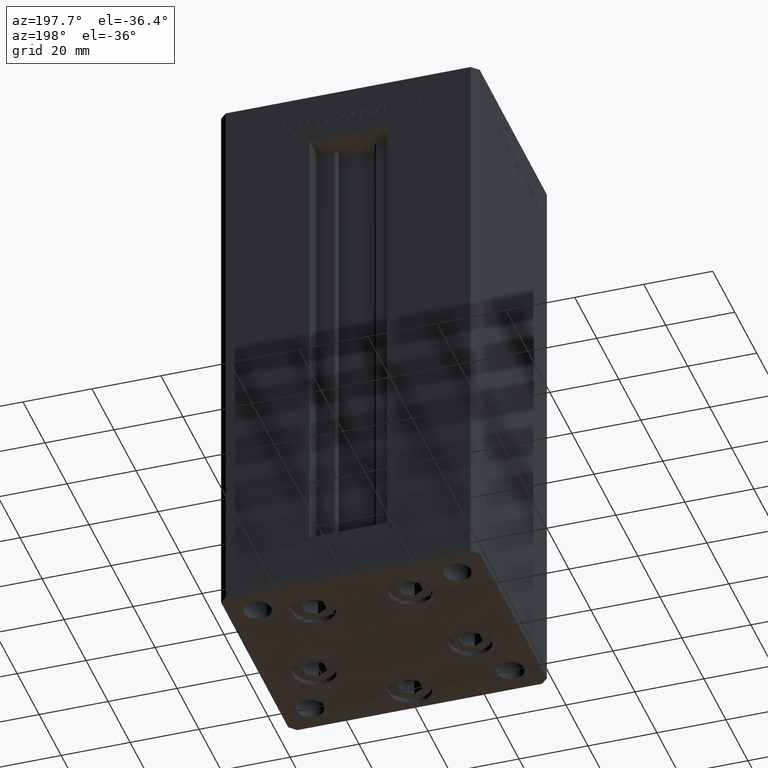
[diagram: clean part render]
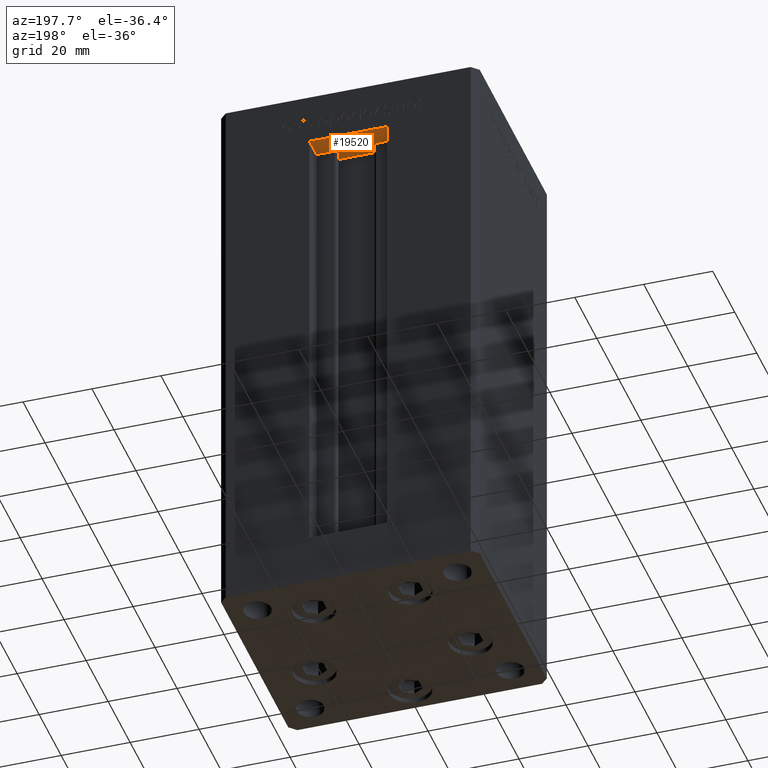
[diagram: same view with one face highlighted and labeled with its STEP entity id]
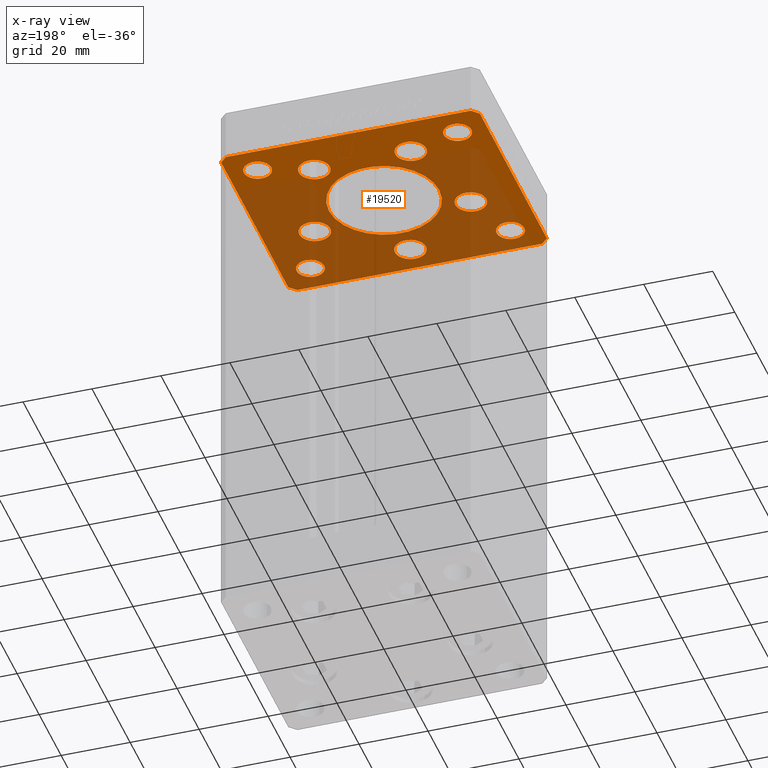
[diagram: x-ray of the same camera — body ghosted, the highlighted face saturated]
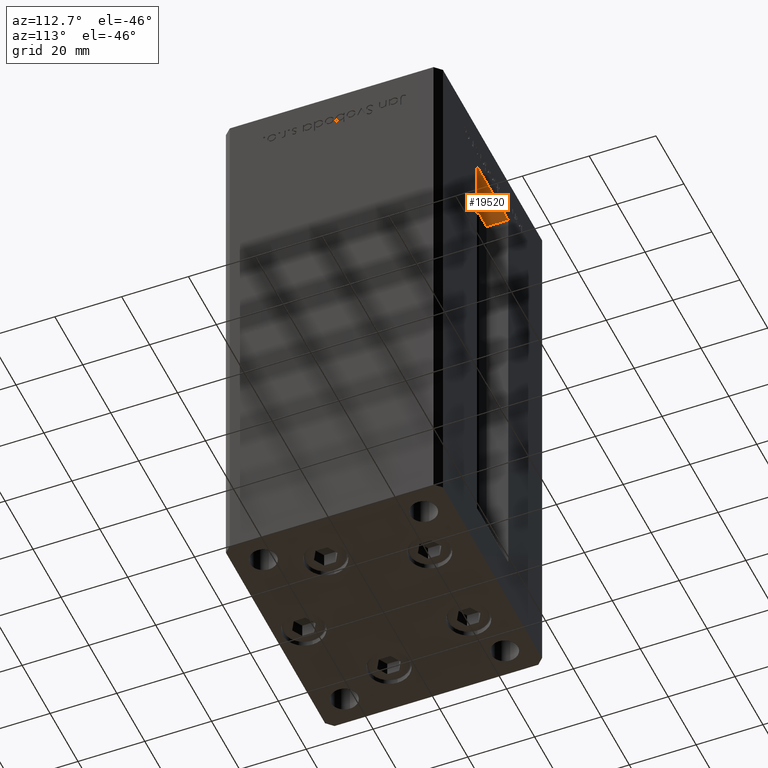
[diagram: same view with one face highlighted and labeled with its STEP entity id]
A machine part, auxiliary view. The second image highlights one B-rep face of the part: STEP entity #19520.
The next image is the same camera in x-ray: the body ghosted, the highlighted face saturated — about 64% of this face is hidden behind the body in this view.
A second angle (auxiliary view) of the same face is appended — the face is thin or edge-on in the first view.
In plain terms, the highlighted planar face has unit normal (0, 0, 1).
Its self-contained STEP definition (entity closure, byte-faithful):
#21 = CARTESIAN_POINT ( 'NONE',  ( 37.50000000000000711, -30.49999999999992895, -15.00000000000000000 ) ) ;
#160 = AXIS2_PLACEMENT_3D ( 'NONE', #14216, #30324, #23173 ) ;
#187 = DIRECTION ( 'NONE',  ( 1.000000000000000000, 0.000000000000000000, 0.000000000000000000 ) ) ;
#308 = CARTESIAN_POINT ( 'NONE',  ( 16.00000000000000000, 0.000000000000000000, -15.00000000000000000 ) ) ;
#350 = EDGE_CURVE ( 'NONE', #39140, #37701, #41147, .T. ) ;
#521 = ORIENTED_EDGE ( 'NONE', *, *, #40923, .F. ) ;
#625 = CARTESIAN_POINT ( 'NONE',  ( 24.99999999999999645, 24.00000000000000355, -15.00000000000000000 ) ) ;
#746 = CARTESIAN_POINT ( 'NONE',  ( 25.00000000000000355, -23.99999999999999645, -15.00000000000000000 ) ) ;
#773 = EDGE_CURVE ( 'NONE', #48253, #44086, #39216, .T. ) ;
#804 = CARTESIAN_POINT ( 'NONE',  ( -29.00000000000000000, 24.00000000000000711, -15.00000000000000000 ) ) ;
#809 = CARTESIAN_POINT ( 'NONE',  ( 0.000000000000000000, -24.00000000000001066, -15.00000000000000000 ) ) ;
#1065 = EDGE_CURVE ( 'NONE', #35230, #30432, #29121, .T. ) ;
#1139 = DIRECTION ( 'NONE',  ( -0.7071067811865524577, -0.7071067811865426878, 0.000000000000000000 ) ) ;
#1428 = VERTEX_POINT ( 'NONE', #45068 ) ;
#1552 = VERTEX_POINT ( 'NONE', #43324 ) ;
#1698 = CIRCLE ( 'NONE', #37935, 4.499999999999997335 ) ;
#1767 = AXIS2_PLACEMENT_3D ( 'NONE', #34996, #51113, #14937 ) ;
#1796 = DIRECTION ( 'NONE',  ( 1.000000000000000000, 0.000000000000000000, 0.000000000000000000 ) ) ;
#1877 = AXIS2_PLACEMENT_3D ( 'NONE', #15472, #44505, #187 ) ;
#2152 = EDGE_LOOP ( 'NONE', ( #521, #35814 ) ) ;
#2227 = CARTESIAN_POINT ( 'NONE',  ( -25.00000000000000355, -23.99999999999999645, -15.00000000000000000 ) ) ;
#2317 = CIRCLE ( 'NONE', #31828, 4.000000000000000000 ) ;
#2353 = FACE_BOUND ( 'NONE', #42183, .T. ) ;
#2509 = ORIENTED_EDGE ( 'NONE', *, *, #3491, .F. ) ;
#2625 = FACE_BOUND ( 'NONE', #18201, .T. ) ;
#3203 = CARTESIAN_POINT ( 'NONE',  ( 29.00000000000000000, 24.00000000000000355, -15.00000000000000000 ) ) ;
#3453 = VERTEX_POINT ( 'NONE', #21 ) ;
#3491 = EDGE_CURVE ( 'NONE', #1552, #3551, #18187, .T. ) ;
#3551 = VERTEX_POINT ( 'NONE', #39594 ) ;
#3615 = EDGE_CURVE ( 'NONE', #36617, #40443, #9493, .T. ) ;
#3997 = ORIENTED_EDGE ( 'NONE', *, *, #34465, .F. ) ;
#4982 = CARTESIAN_POINT ( 'NONE',  ( -37.50000000000000000, -30.50000000000004263, -15.00000000000000000 ) ) ;
#4988 = CARTESIAN_POINT ( 'NONE',  ( 35.50000000000000000, 32.49999999999999289, -15.00000000000000000 ) ) ;
#5001 = DIRECTION ( 'NONE',  ( 1.000000000000000000, 0.000000000000000000, 0.000000000000000000 ) ) ;
#5093 = LINE ( 'NONE', #28066, #32927 ) ;
#5739 = CARTESIAN_POINT ( 'NONE',  ( 13.99106857963324124, 19.50000000000000000, -15.00000000000000000 ) ) ;
#5899 = VECTOR ( 'NONE', #32949, 1000.000000000000000 ) ;
#5925 = DIRECTION ( 'NONE',  ( 1.000000000000000000, 0.000000000000000000, 0.000000000000000000 ) ) ;
#6122 = CARTESIAN_POINT ( 'NONE',  ( 35.50000000000001421, -32.49999999999992184, -15.00000000000000000 ) ) ;
#6305 = DIRECTION ( 'NONE',  ( 1.000000000000000000, 0.000000000000000000, 0.000000000000000000 ) ) ;
#6568 = FACE_BOUND ( 'NONE', #30610, .T. ) ;
#6614 = AXIS2_PLACEMENT_3D ( 'NONE', #34210, #38181, #22067 ) ;
#6688 = CIRCLE ( 'NONE', #14290, 3.999999999999996447 ) ;
#6828 = VERTEX_POINT ( 'NONE', #33666 ) ;
#7266 = CARTESIAN_POINT ( 'NONE',  ( -35.50000000000001421, -32.50000000000000711, -15.00000000000000000 ) ) ;
#7383 = CARTESIAN_POINT ( 'NONE',  ( 22.62741699796953299, -8.000000000000000000, -15.00000000000000000 ) ) ;
#7566 = AXIS2_PLACEMENT_3D ( 'NONE', #46570, #42856, #5925 ) ;
#8012 = ORIENTED_EDGE ( 'NONE', *, *, #42412, .F. ) ;
#8058 = AXIS2_PLACEMENT_3D ( 'NONE', #27440, #24278, #24012 ) ;
#8407 = DIRECTION ( 'NONE',  ( -0.000000000000000000, -0.000000000000000000, -1.000000000000000000 ) ) ;
#8516 = CIRCLE ( 'NONE', #1767, 16.00000000000000000 ) ;
#8824 = EDGE_CURVE ( 'NONE', #41921, #43647, #2317, .T. ) ;
#8929 = EDGE_CURVE ( 'NONE', #26376, #6828, #18372, .T. ) ;
#9067 = VERTEX_POINT ( 'NONE', #34911 ) ;
#9089 = AXIS2_PLACEMENT_3D ( 'NONE', #14063, #18042, #46272 ) ;
#9330 = ORIENTED_EDGE ( 'NONE', *, *, #27339, .T. ) ;
#9477 = DIRECTION ( 'NONE',  ( 0.000000000000000000, -0.000000000000000000, -1.000000000000000000 ) ) ;
#9493 = LINE ( 'NONE', #4988, #45211 ) ;
#9748 = EDGE_CURVE ( 'NONE', #36745, #10036, #51275, .T. ) ;
#10036 = VERTEX_POINT ( 'NONE', #46035 ) ;
#10242 = CARTESIAN_POINT ( 'NONE',  ( -22.62741699796953299, -8.000000000000000000, -15.00000000000000000 ) ) ;
#10987 = AXIS2_PLACEMENT_3D ( 'NONE', #16206, #48928, #41254 ) ;
#11028 = VERTEX_POINT ( 'NONE', #37872 ) ;
#11049 = DIRECTION ( 'NONE',  ( 0.000000000000000000, -0.000000000000000000, -1.000000000000000000 ) ) ;
#11378 = DIRECTION ( 'NONE',  ( 1.000000000000000000, 0.000000000000000000, 0.000000000000000000 ) ) ;
#12169 = EDGE_CURVE ( 'NONE', #24438, #21400, #47130, .T. ) ;
#12625 = ORIENTED_EDGE ( 'NONE', *, *, #22427, .F. ) ;
#13159 = DIRECTION ( 'NONE',  ( 0.7071067811865512365, -0.7071067811865439090, 0.000000000000000000 ) ) ;
#13439 = ORIENTED_EDGE ( 'NONE', *, *, #25538, .F. ) ;
#13748 = EDGE_CURVE ( 'NONE', #30432, #35230, #6688, .T. ) ;
#13848 = CARTESIAN_POINT ( 'NONE',  ( -35.50000000000000711, 32.49999999999997868, -15.00000000000000000 ) ) ;
#14063 = CARTESIAN_POINT ( 'NONE',  ( 13.99106857963324124, 19.50000000000000000, -15.00000000000000000 ) ) ;
#14216 = CARTESIAN_POINT ( 'NONE',  ( -13.99106857963324124, 19.50000000000000000, -15.00000000000000000 ) ) ;
#14228 = FACE_OUTER_BOUND ( 'NONE', #18804, .T. ) ;
#14290 = AXIS2_PLACEMENT_3D ( 'NONE', #24079, #20130, #32283 ) ;
#14326 = EDGE_LOOP ( 'NONE', ( #41379, #45835 ) ) ;
#14351 = LINE ( 'NONE', #38908, #48867 ) ;
#14747 = FACE_BOUND ( 'NONE', #28687, .T. ) ;
#14937 = DIRECTION ( 'NONE',  ( 1.000000000000000000, 0.000000000000000000, 0.000000000000000000 ) ) ;
#15113 = EDGE_CURVE ( 'NONE', #21400, #24438, #1698, .T. ) ;
#15245 = VERTEX_POINT ( 'NONE', #44283 ) ;
#15472 = CARTESIAN_POINT ( 'NONE',  ( 0.000000000000000000, 0.000000000000000000, -15.00000000000000000 ) ) ;
#16178 = DIRECTION ( 'NONE',  ( -1.000000000000000000, 0.000000000000000000, 0.000000000000000000 ) ) ;
#16206 = CARTESIAN_POINT ( 'NONE',  ( -29.00000000000000000, 24.00000000000000711, -15.00000000000000000 ) ) ;
#16459 = DIRECTION ( 'NONE',  ( 1.000000000000000000, 1.172770800660376149E-15, 0.000000000000000000 ) ) ;
#16469 = AXIS2_PLACEMENT_3D ( 'NONE', #43878, #47834, #16178 ) ;
#16699 = EDGE_CURVE ( 'NONE', #3453, #11028, #44428, .T. ) ;
#16798 = EDGE_LOOP ( 'NONE', ( #36967, #38866 ) ) ;
#16872 = DIRECTION ( 'NONE',  ( 1.000000000000000000, 0.000000000000000000, 0.000000000000000000 ) ) ;
#17232 = CARTESIAN_POINT ( 'NONE',  ( -35.50000000000000711, 32.49999999999997868, -15.00000000000000000 ) ) ;
#17702 = AXIS2_PLACEMENT_3D ( 'NONE', #26373, #42471, #6305 ) ;
#17849 = ORIENTED_EDGE ( 'NONE', *, *, #16699, .F. ) ;
#17950 = FACE_BOUND ( 'NONE', #41407, .T. ) ;
#18042 = DIRECTION ( 'NONE',  ( 0.000000000000000000, -0.000000000000000000, -1.000000000000000000 ) ) ;
#18176 = EDGE_CURVE ( 'NONE', #11028, #36617, #14351, .T. ) ;
#18187 = CIRCLE ( 'NONE', #51916, 4.500000000000000888 ) ;
#18201 = EDGE_LOOP ( 'NONE', ( #31279, #9330 ) ) ;
#18372 = CIRCLE ( 'NONE', #9089, 4.500000000000005329 ) ;
#18559 = CIRCLE ( 'NONE', #10987, 4.000000000000000000 ) ;
#18564 = CARTESIAN_POINT ( 'NONE',  ( 33.00000000000000000, 24.00000000000000355, -15.00000000000000000 ) ) ;
#18804 = EDGE_LOOP ( 'NONE', ( #26271, #28327, #3997, #28878, #48421, #17849, #50367, #49213 ) ) ;
#19291 = EDGE_CURVE ( 'NONE', #1428, #3453, #50469, .T. ) ;
#19520 = ADVANCED_FACE ( 'NONE', ( #6568, #51190, #14747, #2353, #50146, #38786, #2625, #30076, #14228, #17950, #34559 ), #50671, .F. ) ;
#19831 = VERTEX_POINT ( 'NONE', #308 ) ;
#20130 = DIRECTION ( 'NONE',  ( 0.000000000000000000, 0.000000000000000000, 1.000000000000000000 ) ) ;
#20248 = EDGE_CURVE ( 'NONE', #45168, #39140, #28457, .T. ) ;
#20777 = EDGE_CURVE ( 'NONE', #37701, #1428, #5093, .T. ) ;
#20894 = EDGE_CURVE ( 'NONE', #10036, #36745, #18559, .T. ) ;
#20924 = CARTESIAN_POINT ( 'NONE',  ( -32.99999999999999289, -23.99999999999999645, -15.00000000000000000 ) ) ;
#21400 = VERTEX_POINT ( 'NONE', #28138 ) ;
#22067 = DIRECTION ( 'NONE',  ( 1.000000000000000000, 0.000000000000000000, 0.000000000000000000 ) ) ;
#22427 = EDGE_CURVE ( 'NONE', #29733, #19831, #8516, .T. ) ;
#22881 = CIRCLE ( 'NONE', #160, 4.499999999999999112 ) ;
#22905 = CARTESIAN_POINT ( 'NONE',  ( 35.50000000000000000, 32.49999999999999289, -15.00000000000000000 ) ) ;
#23173 = DIRECTION ( 'NONE',  ( 1.000000000000000000, 0.000000000000000000, 0.000000000000000000 ) ) ;
#23425 = EDGE_CURVE ( 'NONE', #3551, #1552, #43951, .T. ) ;
#23467 = ORIENTED_EDGE ( 'NONE', *, *, #25740, .F. ) ;
#23597 = VECTOR ( 'NONE', #50985, 1000.000000000000000 ) ;
#24012 = DIRECTION ( 'NONE',  ( 1.000000000000000000, 0.000000000000000000, 0.000000000000000000 ) ) ;
#24079 = CARTESIAN_POINT ( 'NONE',  ( -29.00000000000000000, -23.99999999999999645, -15.00000000000000000 ) ) ;
#24278 = DIRECTION ( 'NONE',  ( 0.000000000000000000, 0.000000000000000000, 1.000000000000000000 ) ) ;
#24438 = VERTEX_POINT ( 'NONE', #30556 ) ;
#24586 = CARTESIAN_POINT ( 'NONE',  ( 33.00000000000000000, -23.99999999999999645, -15.00000000000000000 ) ) ;
#24632 = CIRCLE ( 'NONE', #1877, 16.00000000000000000 ) ;
#24734 = ORIENTED_EDGE ( 'NONE', *, *, #26657, .F. ) ;
#25495 = ORIENTED_EDGE ( 'NONE', *, *, #20894, .F. ) ;
#25538 = EDGE_CURVE ( 'NONE', #45699, #9067, #22881, .T. ) ;
#25577 = DIRECTION ( 'NONE',  ( -1.000000000000000000, -1.954618001100627573E-16, 0.000000000000000000 ) ) ;
#25740 = EDGE_CURVE ( 'NONE', #44086, #48253, #26311, .T. ) ;
#26271 = ORIENTED_EDGE ( 'NONE', *, *, #350, .F. ) ;
#26311 = CIRCLE ( 'NONE', #32251, 4.000000000000000000 ) ;
#26373 = CARTESIAN_POINT ( 'NONE',  ( 0.000000000000000000, 0.000000000000000000, -15.00000000000000000 ) ) ;
#26376 = VERTEX_POINT ( 'NONE', #47280 ) ;
#26657 = EDGE_CURVE ( 'NONE', #19831, #29733, #24632, .T. ) ;
#26683 = CARTESIAN_POINT ( 'NONE',  ( -9.491068579633243019, 19.50000000000000000, -15.00000000000000000 ) ) ;
#27339 = EDGE_CURVE ( 'NONE', #43647, #41921, #51653, .T. ) ;
#27440 = CARTESIAN_POINT ( 'NONE',  ( -29.00000000000000000, -23.99999999999999645, -15.00000000000000000 ) ) ;
#28066 = CARTESIAN_POINT ( 'NONE',  ( -35.50000000000001421, -32.50000000000000711, -15.00000000000000000 ) ) ;
#28138 = CARTESIAN_POINT ( 'NONE',  ( -27.12741699796953299, -8.000000000000000000, -15.00000000000000000 ) ) ;
#28327 = ORIENTED_EDGE ( 'NONE', *, *, #20248, .F. ) ;
#28457 = LINE ( 'NONE', #44566, #5899 ) ;
#28687 = EDGE_LOOP ( 'NONE', ( #47445, #8012 ) ) ;
#28878 = ORIENTED_EDGE ( 'NONE', *, *, #3615, .F. ) ;
#29121 = CIRCLE ( 'NONE', #8058, 3.999999999999996447 ) ;
#29361 = AXIS2_PLACEMENT_3D ( 'NONE', #5739, #30017, #1796 ) ;
#29404 = CARTESIAN_POINT ( 'NONE',  ( 29.00000000000000000, 24.00000000000000355, -15.00000000000000000 ) ) ;
#29495 = CARTESIAN_POINT ( 'NONE',  ( -37.50000000000000000, -30.50000000000004263, -15.00000000000000000 ) ) ;
#29733 = VERTEX_POINT ( 'NONE', #46488 ) ;
#30017 = DIRECTION ( 'NONE',  ( 0.000000000000000000, -0.000000000000000000, -1.000000000000000000 ) ) ;
#30076 = FACE_BOUND ( 'NONE', #14326, .T. ) ;
#30324 = DIRECTION ( 'NONE',  ( 0.000000000000000000, -0.000000000000000000, -1.000000000000000000 ) ) ;
#30432 = VERTEX_POINT ( 'NONE', #20924 ) ;
#30458 = DIRECTION ( 'NONE',  ( -0.7071067811865524577, 0.7071067811865426878, 0.000000000000000000 ) ) ;
#30556 = CARTESIAN_POINT ( 'NONE',  ( -18.12741699796953654, -8.000000000000000000, -15.00000000000000000 ) ) ;
#30610 = EDGE_LOOP ( 'NONE', ( #24734, #12625 ) ) ;
#30812 = AXIS2_PLACEMENT_3D ( 'NONE', #809, #40909, #5001 ) ;
#31118 = ORIENTED_EDGE ( 'NONE', *, *, #45414, .F. ) ;
#31279 = ORIENTED_EDGE ( 'NONE', *, *, #8824, .T. ) ;
#31622 = CARTESIAN_POINT ( 'NONE',  ( -22.62741699796953299, -8.000000000000000000, -15.00000000000000000 ) ) ;
#31828 = AXIS2_PLACEMENT_3D ( 'NONE', #29404, #48690, #36807 ) ;
#32251 = AXIS2_PLACEMENT_3D ( 'NONE', #44558, #8407, #39288 ) ;
#32283 = DIRECTION ( 'NONE',  ( 1.000000000000000000, 0.000000000000000000, 0.000000000000000000 ) ) ;
#32548 = LINE ( 'NONE', #17232, #36788 ) ;
#32811 = VECTOR ( 'NONE', #40207, 1000.000000000000000 ) ;
#32927 = VECTOR ( 'NONE', #16459, 1000.000000000000000 ) ;
#32949 = DIRECTION ( 'NONE',  ( 2.275047181608926165E-16, -1.000000000000000000, 0.000000000000000000 ) ) ;
#33483 = EDGE_CURVE ( 'NONE', #38780, #15245, #43437, .T. ) ;
#33666 = CARTESIAN_POINT ( 'NONE',  ( 18.49106857963324657, 19.50000000000000000, -15.00000000000000000 ) ) ;
#33826 = AXIS2_PLACEMENT_3D ( 'NONE', #50558, #49323, #16872 ) ;
#34210 = CARTESIAN_POINT ( 'NONE',  ( 0.000000000000000000, -24.00000000000001066, -15.00000000000000000 ) ) ;
#34421 = AXIS2_PLACEMENT_3D ( 'NONE', #804, #45128, #44609 ) ;
#34465 = EDGE_CURVE ( 'NONE', #40443, #45168, #32548, .T. ) ;
#34559 = FACE_BOUND ( 'NONE', #35350, .T. ) ;
#34911 = CARTESIAN_POINT ( 'NONE',  ( -18.49106857963323947, 19.50000000000000000, -15.00000000000000000 ) ) ;
#34996 = CARTESIAN_POINT ( 'NONE',  ( 0.000000000000000000, 0.000000000000000000, -15.00000000000000000 ) ) ;
#35230 = VERTEX_POINT ( 'NONE', #2227 ) ;
#35350 = EDGE_LOOP ( 'NONE', ( #50735, #23467 ) ) ;
#35814 = ORIENTED_EDGE ( 'NONE', *, *, #8929, .F. ) ;
#36469 = AXIS2_PLACEMENT_3D ( 'NONE', #3203, #39888, #11378 ) ;
#36617 = VERTEX_POINT ( 'NONE', #22905 ) ;
#36745 = VERTEX_POINT ( 'NONE', #37404 ) ;
#36788 = VECTOR ( 'NONE', #1139, 1000.000000000000000 ) ;
#36807 = DIRECTION ( 'NONE',  ( 1.000000000000000000, 0.000000000000000000, 0.000000000000000000 ) ) ;
#36967 = ORIENTED_EDGE ( 'NONE', *, *, #12169, .F. ) ;
#37404 = CARTESIAN_POINT ( 'NONE',  ( -25.00000000000000000, 24.00000000000000711, -15.00000000000000000 ) ) ;
#37701 = VERTEX_POINT ( 'NONE', #7266 ) ;
#37872 = CARTESIAN_POINT ( 'NONE',  ( 37.50000000000000711, 30.50000000000001421, -15.00000000000000000 ) ) ;
#37914 = CIRCLE ( 'NONE', #7566, 4.499999999999999112 ) ;
#37935 = AXIS2_PLACEMENT_3D ( 'NONE', #31622, #11049, #39036 ) ;
#38181 = DIRECTION ( 'NONE',  ( 0.000000000000000000, -0.000000000000000000, -1.000000000000000000 ) ) ;
#38780 = VERTEX_POINT ( 'NONE', #44202 ) ;
#38786 = FACE_BOUND ( 'NONE', #41775, .T. ) ;
#38866 = ORIENTED_EDGE ( 'NONE', *, *, #15113, .F. ) ;
#38908 = CARTESIAN_POINT ( 'NONE',  ( 37.50000000000000711, 30.50000000000001421, -15.00000000000000000 ) ) ;
#39036 = DIRECTION ( 'NONE',  ( 1.000000000000000000, 0.000000000000000000, 0.000000000000000000 ) ) ;
#39140 = VERTEX_POINT ( 'NONE', #29495 ) ;
#39216 = CIRCLE ( 'NONE', #16469, 4.000000000000000000 ) ;
#39288 = DIRECTION ( 'NONE',  ( -1.000000000000000000, 0.000000000000000000, 0.000000000000000000 ) ) ;
#39594 = CARTESIAN_POINT ( 'NONE',  ( 18.12741699796953299, -8.000000000000000000, -15.00000000000000000 ) ) ;
#39888 = DIRECTION ( 'NONE',  ( 0.000000000000000000, 0.000000000000000000, 1.000000000000000000 ) ) ;
#40207 = DIRECTION ( 'NONE',  ( 0.000000000000000000, 1.000000000000000000, 0.000000000000000000 ) ) ;
#40443 = VERTEX_POINT ( 'NONE', #13848 ) ;
#40478 = CARTESIAN_POINT ( 'NONE',  ( 37.50000000000000711, -30.49999999999992895, -15.00000000000000000 ) ) ;
#40909 = DIRECTION ( 'NONE',  ( 0.000000000000000000, -0.000000000000000000, -1.000000000000000000 ) ) ;
#40923 = EDGE_CURVE ( 'NONE', #6828, #26376, #52113, .T. ) ;
#41147 = LINE ( 'NONE', #4982, #45103 ) ;
#41254 = DIRECTION ( 'NONE',  ( -1.000000000000000000, 0.000000000000000000, 0.000000000000000000 ) ) ;
#41379 = ORIENTED_EDGE ( 'NONE', *, *, #1065, .T. ) ;
#41407 = EDGE_LOOP ( 'NONE', ( #42219, #25495 ) ) ;
#41775 = EDGE_LOOP ( 'NONE', ( #13439, #31118 ) ) ;
#41921 = VERTEX_POINT ( 'NONE', #18564 ) ;
#42077 = AXIS2_PLACEMENT_3D ( 'NONE', #10242, #9477, #50102 ) ;
#42183 = EDGE_LOOP ( 'NONE', ( #2509, #43063 ) ) ;
#42219 = ORIENTED_EDGE ( 'NONE', *, *, #9748, .F. ) ;
#42412 = EDGE_CURVE ( 'NONE', #15245, #38780, #43735, .T. ) ;
#42471 = DIRECTION ( 'NONE',  ( -0.000000000000000000, 0.000000000000000000, 1.000000000000000000 ) ) ;
#42856 = DIRECTION ( 'NONE',  ( 0.000000000000000000, -0.000000000000000000, -1.000000000000000000 ) ) ;
#43063 = ORIENTED_EDGE ( 'NONE', *, *, #23425, .F. ) ;
#43324 = CARTESIAN_POINT ( 'NONE',  ( 27.12741699796953654, -8.000000000000000000, -15.00000000000000000 ) ) ;
#43437 = CIRCLE ( 'NONE', #30812, 4.500000000000001776 ) ;
#43647 = VERTEX_POINT ( 'NONE', #625 ) ;
#43735 = CIRCLE ( 'NONE', #6614, 4.500000000000001776 ) ;
#43878 = CARTESIAN_POINT ( 'NONE',  ( 29.00000000000000355, -23.99999999999999645, -15.00000000000000000 ) ) ;
#43951 = CIRCLE ( 'NONE', #33826, 4.500000000000000888 ) ;
#44086 = VERTEX_POINT ( 'NONE', #746 ) ;
#44202 = CARTESIAN_POINT ( 'NONE',  ( 4.500000000000001776, -24.00000000000001066, -15.00000000000000000 ) ) ;
#44283 = CARTESIAN_POINT ( 'NONE',  ( -4.500000000000001776, -24.00000000000001066, -15.00000000000000000 ) ) ;
#44428 = LINE ( 'NONE', #40478, #32811 ) ;
#44505 = DIRECTION ( 'NONE',  ( 0.000000000000000000, -0.000000000000000000, -1.000000000000000000 ) ) ;
#44558 = CARTESIAN_POINT ( 'NONE',  ( 29.00000000000000355, -23.99999999999999645, -15.00000000000000000 ) ) ;
#44566 = CARTESIAN_POINT ( 'NONE',  ( -37.50000000000001421, 30.50000000000000000, -15.00000000000000000 ) ) ;
#44609 = DIRECTION ( 'NONE',  ( -1.000000000000000000, 0.000000000000000000, 0.000000000000000000 ) ) ;
#45068 = CARTESIAN_POINT ( 'NONE',  ( 35.50000000000001421, -32.49999999999992184, -15.00000000000000000 ) ) ;
#45103 = VECTOR ( 'NONE', #13159, 1000.000000000000000 ) ;
#45128 = DIRECTION ( 'NONE',  ( -0.000000000000000000, -0.000000000000000000, -1.000000000000000000 ) ) ;
#45168 = VERTEX_POINT ( 'NONE', #47664 ) ;
#45211 = VECTOR ( 'NONE', #25577, 1000.000000000000000 ) ;
#45414 = EDGE_CURVE ( 'NONE', #9067, #45699, #37914, .T. ) ;
#45699 = VERTEX_POINT ( 'NONE', #26683 ) ;
#45835 = ORIENTED_EDGE ( 'NONE', *, *, #13748, .T. ) ;
#46035 = CARTESIAN_POINT ( 'NONE',  ( -33.00000000000000000, 24.00000000000000711, -15.00000000000000000 ) ) ;
#46272 = DIRECTION ( 'NONE',  ( 1.000000000000000000, 0.000000000000000000, 0.000000000000000000 ) ) ;
#46488 = CARTESIAN_POINT ( 'NONE',  ( -16.00000000000000000, 1.959434878635765131E-15, -15.00000000000000000 ) ) ;
#46570 = CARTESIAN_POINT ( 'NONE',  ( -13.99106857963324124, 19.50000000000000000, -15.00000000000000000 ) ) ;
#47130 = CIRCLE ( 'NONE', #42077, 4.499999999999997335 ) ;
#47280 = CARTESIAN_POINT ( 'NONE',  ( 9.491068579633235913, 19.50000000000000000, -15.00000000000000000 ) ) ;
#47445 = ORIENTED_EDGE ( 'NONE', *, *, #33483, .F. ) ;
#47664 = CARTESIAN_POINT ( 'NONE',  ( -37.50000000000001421, 30.50000000000000000, -15.00000000000000000 ) ) ;
#47834 = DIRECTION ( 'NONE',  ( -0.000000000000000000, -0.000000000000000000, -1.000000000000000000 ) ) ;
#48253 = VERTEX_POINT ( 'NONE', #24586 ) ;
#48421 = ORIENTED_EDGE ( 'NONE', *, *, #18176, .F. ) ;
#48557 = DIRECTION ( 'NONE',  ( 0.000000000000000000, -0.000000000000000000, -1.000000000000000000 ) ) ;
#48690 = DIRECTION ( 'NONE',  ( 0.000000000000000000, 0.000000000000000000, 1.000000000000000000 ) ) ;
#48867 = VECTOR ( 'NONE', #30458, 1000.000000000000000 ) ;
#48928 = DIRECTION ( 'NONE',  ( -0.000000000000000000, -0.000000000000000000, -1.000000000000000000 ) ) ;
#49213 = ORIENTED_EDGE ( 'NONE', *, *, #20777, .F. ) ;
#49323 = DIRECTION ( 'NONE',  ( 0.000000000000000000, -0.000000000000000000, -1.000000000000000000 ) ) ;
#50102 = DIRECTION ( 'NONE',  ( 1.000000000000000000, 0.000000000000000000, 0.000000000000000000 ) ) ;
#50146 = FACE_BOUND ( 'NONE', #2152, .T. ) ;
#50367 = ORIENTED_EDGE ( 'NONE', *, *, #19291, .F. ) ;
#50469 = LINE ( 'NONE', #6122, #23597 ) ;
#50558 = CARTESIAN_POINT ( 'NONE',  ( 22.62741699796953299, -8.000000000000000000, -15.00000000000000000 ) ) ;
#50671 = PLANE ( 'NONE',  #17702 ) ;
#50735 = ORIENTED_EDGE ( 'NONE', *, *, #773, .F. ) ;
#50985 = DIRECTION ( 'NONE',  ( 0.7071067811865463515, 0.7071067811865487940, 0.000000000000000000 ) ) ;
#51113 = DIRECTION ( 'NONE',  ( 0.000000000000000000, -0.000000000000000000, -1.000000000000000000 ) ) ;
#51190 = FACE_BOUND ( 'NONE', #16798, .T. ) ;
#51275 = CIRCLE ( 'NONE', #34421, 4.000000000000000000 ) ;
#51483 = DIRECTION ( 'NONE',  ( 1.000000000000000000, 0.000000000000000000, 0.000000000000000000 ) ) ;
#51653 = CIRCLE ( 'NONE', #36469, 4.000000000000000000 ) ;
#51916 = AXIS2_PLACEMENT_3D ( 'NONE', #7383, #48557, #51483 ) ;
#52113 = CIRCLE ( 'NONE', #29361, 4.500000000000005329 ) ;